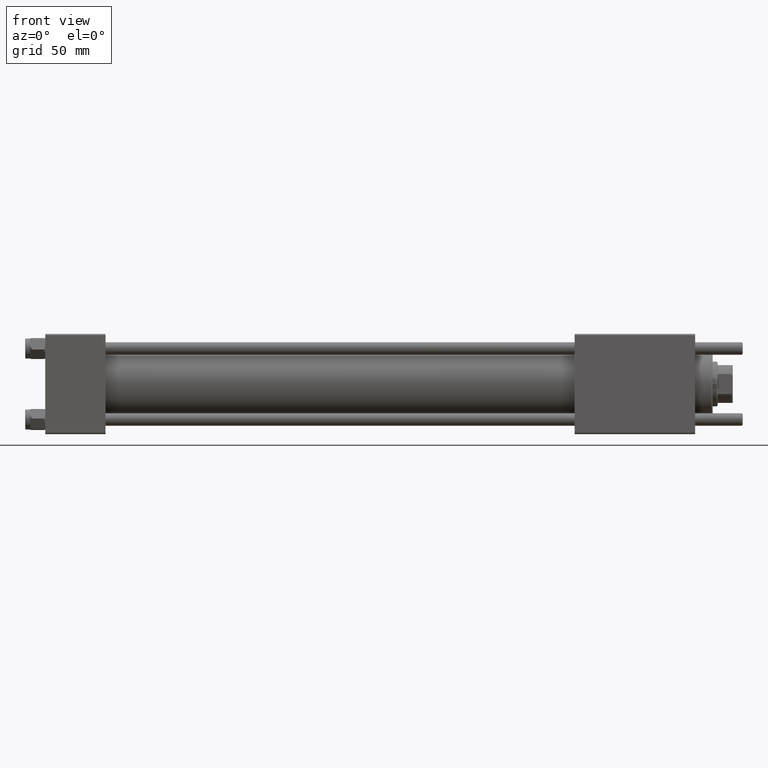
[diagram: clean part render]
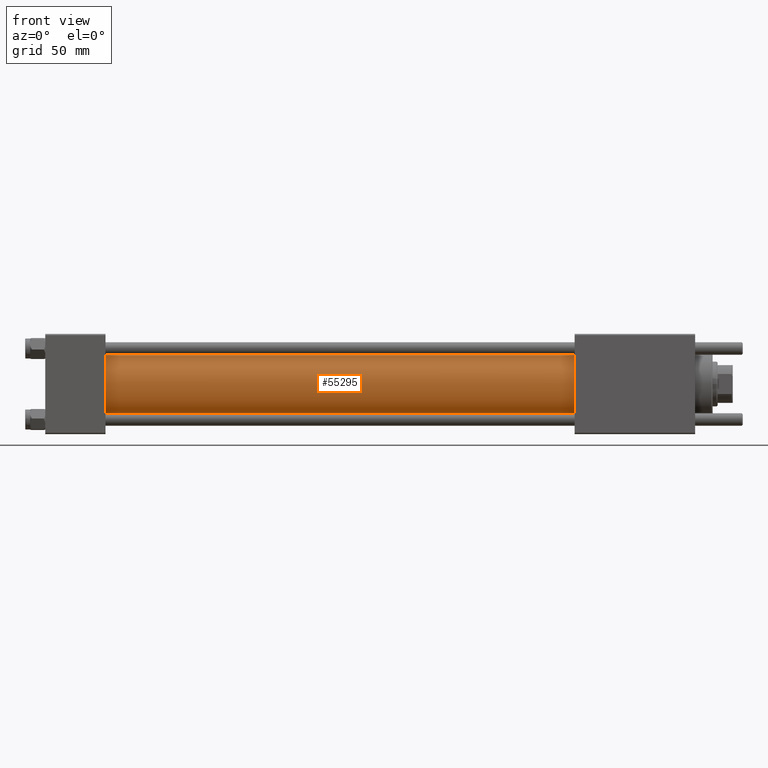
[diagram: same view with one face highlighted and labeled with its STEP entity id]
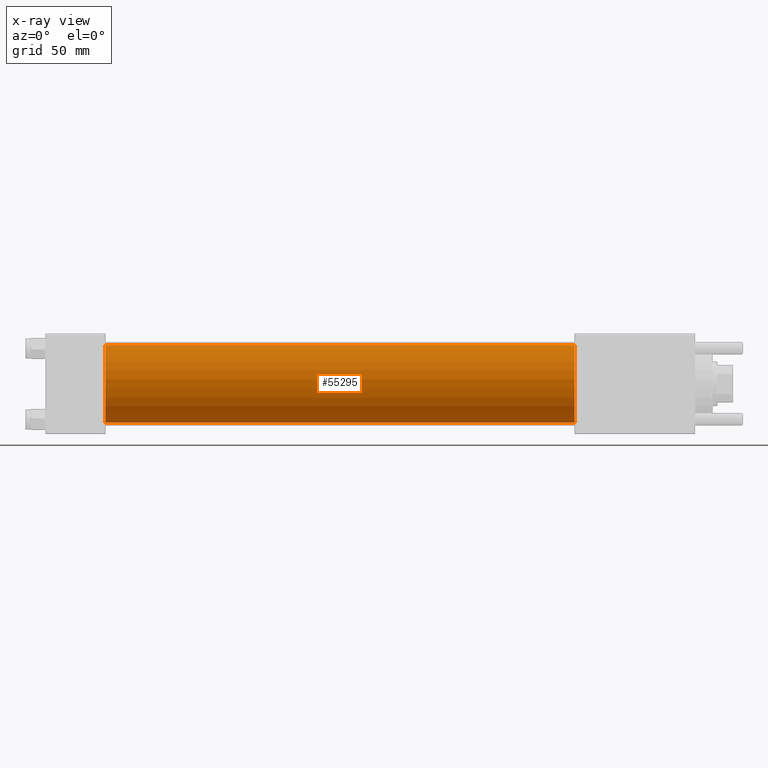
[diagram: x-ray of the same camera — body ghosted, the highlighted face saturated]
A machine part, front view. The second image highlights one B-rep face of the part: STEP entity #55295.
The next image is the same camera in x-ray: the body ghosted, the highlighted face saturated — about 0% of this face is hidden behind the body in this view.
In plain terms, the highlighted cylindrical surface (partial cylindrical patch) has radius 15.5 mm, axis along (-1, -0, -0).
Its self-contained STEP definition (entity closure, byte-faithful):
#673 = CIRCLE ( 'NONE', #34554, 15.50000000000000000 ) ;
#789 = DIRECTION ( 'NONE',  ( -1.000000000000000000, -0.000000000000000000, -0.000000000000000000 ) ) ;
#932 = ORIENTED_EDGE ( 'NONE', *, *, #54277, .F. ) ;
#2946 = VECTOR ( 'NONE', #49266, 1000.000000000000000 ) ;
#3206 = DIRECTION ( 'NONE',  ( 0.000000000000000000, 0.000000000000000000, -1.000000000000000000 ) ) ;
#4713 = ORIENTED_EDGE ( 'NONE', *, *, #24742, .T. ) ;
#6720 = CARTESIAN_POINT ( 'NONE',  ( 211.0000000000000000, -2.602085213965210642E-15, 15.50000000000000000 ) ) ;
#8331 = ORIENTED_EDGE ( 'NONE', *, *, #33456, .F. ) ;
#9673 = CARTESIAN_POINT ( 'NONE',  ( 23.99999999999999289, -2.602085213965210642E-15, 0.000000000000000000 ) ) ;
#13129 = FACE_OUTER_BOUND ( 'NONE', #24321, .T. ) ;
#13687 = CYLINDRICAL_SURFACE ( 'NONE', #51950, 15.50000000000000000 ) ;
#14284 = LINE ( 'NONE', #31759, #2946 ) ;
#15761 = AXIS2_PLACEMENT_3D ( 'NONE', #9673, #32023, #45501 ) ;
#16395 = DIRECTION ( 'NONE',  ( 1.000000000000000000, 0.000000000000000000, 0.000000000000000000 ) ) ;
#16452 = CARTESIAN_POINT ( 'NONE',  ( 23.99999999999999289, -7.038826752868131828E-16, -15.50000000000000000 ) ) ;
#17995 = CARTESIAN_POINT ( 'NONE',  ( 211.0000000000000000, -2.602085213965210642E-15, 0.000000000000000000 ) ) ;
#20161 = VECTOR ( 'NONE', #24215, 1000.000000000000000 ) ;
#20957 = ORIENTED_EDGE ( 'NONE', *, *, #26813, .T. ) ;
#22414 = VERTEX_POINT ( 'NONE', #34363 ) ;
#23983 = CIRCLE ( 'NONE', #15761, 15.50000000000000000 ) ;
#24215 = DIRECTION ( 'NONE',  ( -1.000000000000000000, -0.000000000000000000, -0.000000000000000000 ) ) ;
#24321 = EDGE_LOOP ( 'NONE', ( #8331, #932, #20957, #4713 ) ) ;
#24742 = EDGE_CURVE ( 'NONE', #44086, #39009, #23983, .T. ) ;
#26813 = EDGE_CURVE ( 'NONE', #22414, #44086, #46009, .T. ) ;
#30472 = CARTESIAN_POINT ( 'NONE',  ( 23.99999999999999289, -2.602085213965210642E-15, 15.50000000000000000 ) ) ;
#31759 = CARTESIAN_POINT ( 'NONE',  ( 211.0000000000000000, -7.038826752868131828E-16, -15.50000000000000000 ) ) ;
#32023 = DIRECTION ( 'NONE',  ( 1.000000000000000000, 0.000000000000000000, 0.000000000000000000 ) ) ;
#33456 = EDGE_CURVE ( 'NONE', #48052, #39009, #14284, .T. ) ;
#33950 = CARTESIAN_POINT ( 'NONE',  ( 211.0000000000000000, -7.038826752868131828E-16, -15.50000000000000000 ) ) ;
#34363 = CARTESIAN_POINT ( 'NONE',  ( 211.0000000000000000, -2.602085213965210642E-15, 15.50000000000000000 ) ) ;
#34554 = AXIS2_PLACEMENT_3D ( 'NONE', #55378, #16395, #3206 ) ;
#39009 = VERTEX_POINT ( 'NONE', #16452 ) ;
#40072 = DIRECTION ( 'NONE',  ( 0.000000000000000000, 0.000000000000000000, 1.000000000000000000 ) ) ;
#44086 = VERTEX_POINT ( 'NONE', #30472 ) ;
#45501 = DIRECTION ( 'NONE',  ( 0.000000000000000000, 0.000000000000000000, 1.000000000000000000 ) ) ;
#46009 = LINE ( 'NONE', #6720, #20161 ) ;
#48052 = VERTEX_POINT ( 'NONE', #33950 ) ;
#49266 = DIRECTION ( 'NONE',  ( -1.000000000000000000, -0.000000000000000000, -0.000000000000000000 ) ) ;
#51950 = AXIS2_PLACEMENT_3D ( 'NONE', #17995, #789, #40072 ) ;
#54277 = EDGE_CURVE ( 'NONE', #22414, #48052, #673, .T. ) ;
#55295 = ADVANCED_FACE ( 'NONE', ( #13129 ), #13687, .T. ) ;
#55378 = CARTESIAN_POINT ( 'NONE',  ( 211.0000000000000000, -2.602085213965210642E-15, 0.000000000000000000 ) ) ;